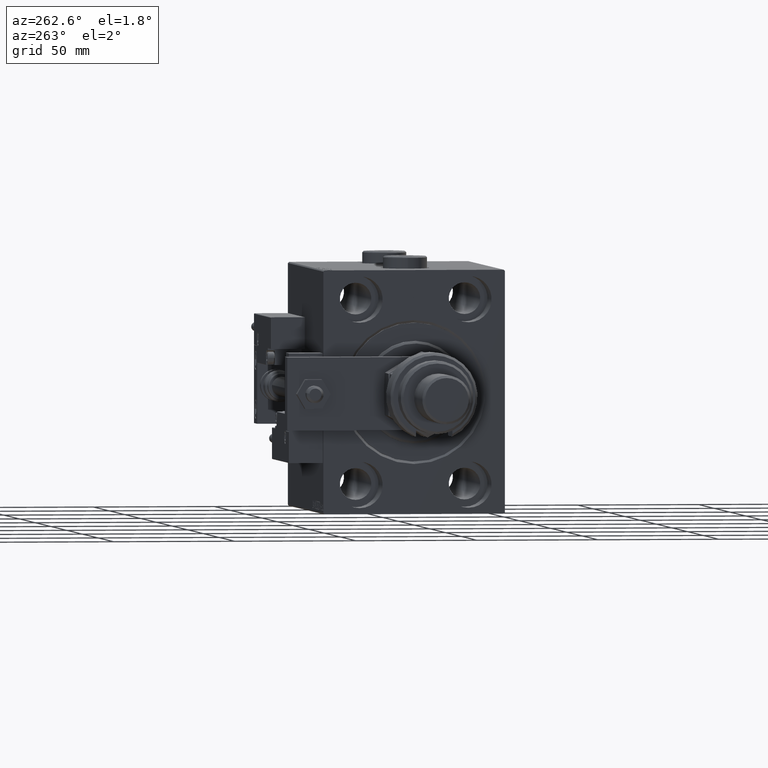
[diagram: clean part render]
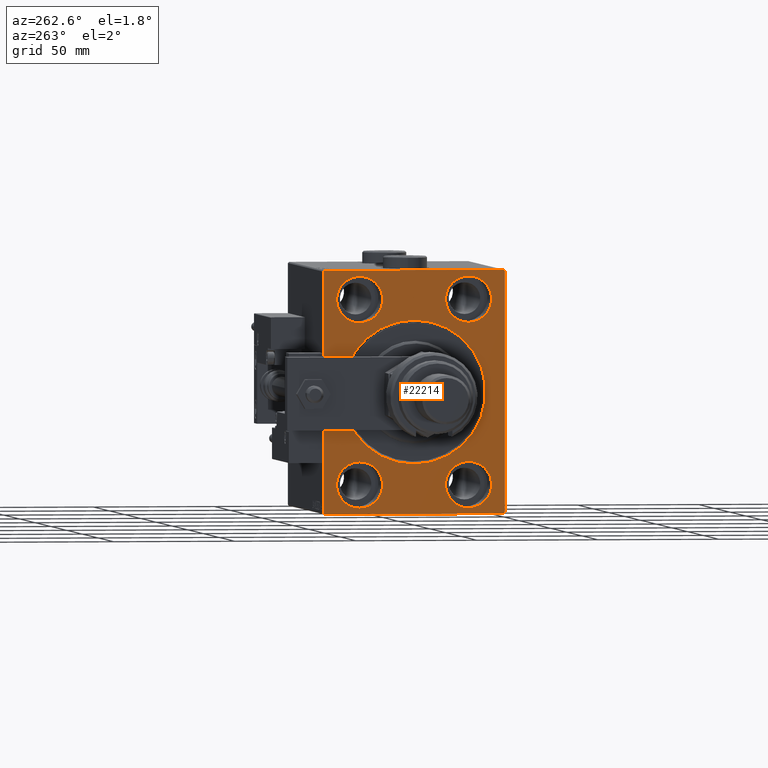
[diagram: same view with one face highlighted and labeled with its STEP entity id]
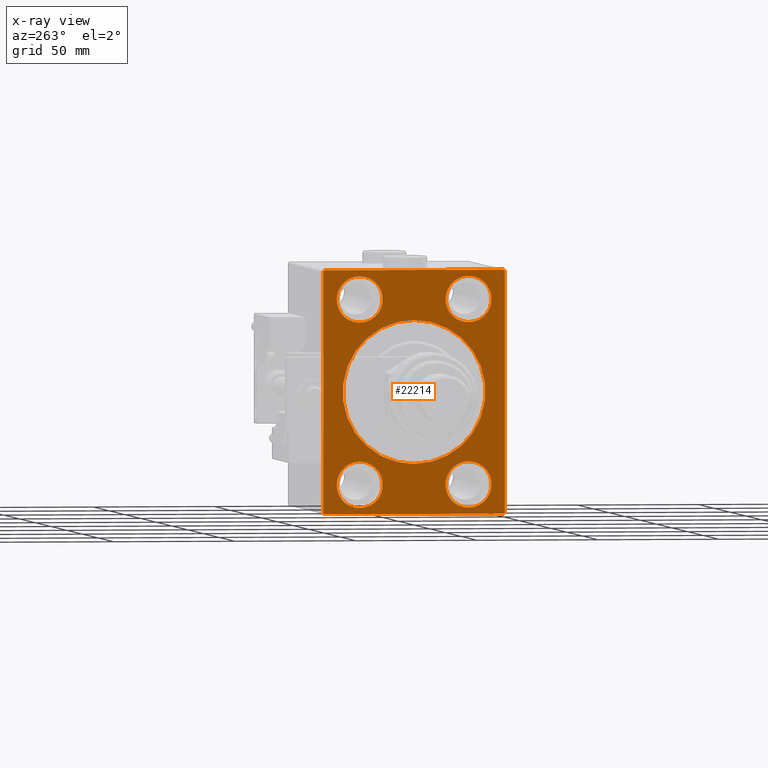
[diagram: x-ray of the same camera — body ghosted, the highlighted face saturated]
A machine part, auxiliary view. The second image highlights one B-rep face of the part: STEP entity #22214.
The next image is the same camera in x-ray: the body ghosted, the highlighted face saturated — about 0% of this face is hidden behind the body in this view.
In plain terms, the highlighted planar face has unit normal (1, 0, 0).
Its self-contained STEP definition (entity closure, byte-faithful):
#101 = CARTESIAN_POINT ( 'NONE',  ( 0.000000000000000000, 22.50000000000000355, 28.49999999999998934 ) ) ;
#556 = EDGE_CURVE ( 'NONE', #15385, #4356, #54219, .T. ) ;
#671 = ORIENTED_EDGE ( 'NONE', *, *, #10466, .T. ) ;
#1246 = EDGE_LOOP ( 'NONE', ( #18097, #41942 ) ) ;
#1442 = AXIS2_PLACEMENT_3D ( 'NONE', #1806, #17781, #34602 ) ;
#1806 = CARTESIAN_POINT ( 'NONE',  ( 0.000000000000000000, -22.49999999999999645, 37.99999999999999289 ) ) ;
#2810 = VERTEX_POINT ( 'NONE', #101 ) ;
#3592 = DIRECTION ( 'NONE',  ( -1.000000000000000000, 0.000000000000000000, 0.000000000000000000 ) ) ;
#3809 = VECTOR ( 'NONE', #54017, 1000.000000000000000 ) ;
#4356 = VERTEX_POINT ( 'NONE', #41732 ) ;
#4665 = CARTESIAN_POINT ( 'NONE',  ( 0.000000000000000000, 37.00000000000000711, -50.00000000000000000 ) ) ;
#4901 = DIRECTION ( 'NONE',  ( -1.000000000000000000, 0.000000000000000000, 0.000000000000000000 ) ) ;
#5135 = CARTESIAN_POINT ( 'NONE',  ( 0.000000000000000000, 37.50000000000000711, -49.50000000000000000 ) ) ;
#5189 = ORIENTED_EDGE ( 'NONE', *, *, #30219, .T. ) ;
#5282 = CARTESIAN_POINT ( 'NONE',  ( 0.000000000000000000, 22.50000000000000355, 47.49999999999999289 ) ) ;
#5301 = DIRECTION ( 'NONE',  ( 0.000000000000000000, 0.000000000000000000, 1.000000000000000000 ) ) ;
#6318 = CARTESIAN_POINT ( 'NONE',  ( 0.000000000000000000, 22.49999999999999645, -28.49999999999998934 ) ) ;
#6780 = EDGE_CURVE ( 'NONE', #4356, #15385, #13109, .T. ) ;
#6819 = DIRECTION ( 'NONE',  ( -0.000000000000000000, -0.7071067811865474617, 0.7071067811865474617 ) ) ;
#6968 = DIRECTION ( 'NONE',  ( -1.000000000000000000, 0.000000000000000000, 0.000000000000000000 ) ) ;
#7377 = VECTOR ( 'NONE', #19593, 1000.000000000000000 ) ;
#7395 = CARTESIAN_POINT ( 'NONE',  ( 0.000000000000000000, 22.49999999999999645, -47.49999999999999289 ) ) ;
#7551 = DIRECTION ( 'NONE',  ( -1.000000000000000000, 0.000000000000000000, 0.000000000000000000 ) ) ;
#7645 = DIRECTION ( 'NONE',  ( 0.000000000000000000, 1.000000000000000000, 9.251858538542970348E-17 ) ) ;
#8192 = EDGE_LOOP ( 'NONE', ( #9602, #44396 ) ) ;
#8298 = FACE_BOUND ( 'NONE', #41068, .T. ) ;
#8562 = FACE_BOUND ( 'NONE', #1246, .T. ) ;
#8665 = DIRECTION ( 'NONE',  ( 0.000000000000000000, -0.7071067811865474617, -0.7071067811865474617 ) ) ;
#9027 = EDGE_CURVE ( 'NONE', #11869, #2810, #25601, .T. ) ;
#9110 = CARTESIAN_POINT ( 'NONE',  ( 0.000000000000000000, 37.49999999999999289, 49.50000000000000000 ) ) ;
#9445 = VERTEX_POINT ( 'NONE', #40370 ) ;
#9602 = ORIENTED_EDGE ( 'NONE', *, *, #21004, .F. ) ;
#9685 = CARTESIAN_POINT ( 'NONE',  ( 0.000000000000000000, 22.49999999999999645, -37.99999999999999289 ) ) ;
#9725 = VERTEX_POINT ( 'NONE', #35303 ) ;
#10466 = EDGE_CURVE ( 'NONE', #45730, #15785, #46663, .T. ) ;
#10555 = CARTESIAN_POINT ( 'NONE',  ( 0.000000000000000000, -22.49999999999999645, 37.99999999999999289 ) ) ;
#11454 = ORIENTED_EDGE ( 'NONE', *, *, #14823, .T. ) ;
#11786 = LINE ( 'NONE', #20563, #37295 ) ;
#11869 = VERTEX_POINT ( 'NONE', #5282 ) ;
#11988 = CARTESIAN_POINT ( 'NONE',  ( 0.000000000000000000, 0.000000000000000000, 0.000000000000000000 ) ) ;
#12135 = VERTEX_POINT ( 'NONE', #46264 ) ;
#12743 = CIRCLE ( 'NONE', #39134, 9.500000000000001776 ) ;
#13109 = CIRCLE ( 'NONE', #43911, 9.500000000000001776 ) ;
#13702 = ORIENTED_EDGE ( 'NONE', *, *, #45956, .F. ) ;
#13778 = DIRECTION ( 'NONE',  ( 0.000000000000000000, -1.387778780781445676E-16, 1.000000000000000000 ) ) ;
#14062 = CARTESIAN_POINT ( 'NONE',  ( 0.000000000000000000, 37.50000000000000711, -50.00000000000000000 ) ) ;
#14256 = VERTEX_POINT ( 'NONE', #7395 ) ;
#14631 = CARTESIAN_POINT ( 'NONE',  ( 0.000000000000000000, 37.49999999999999289, 50.00000000000000711 ) ) ;
#14702 = VERTEX_POINT ( 'NONE', #19313 ) ;
#14803 = EDGE_CURVE ( 'NONE', #36157, #14256, #20523, .T. ) ;
#14823 = EDGE_CURVE ( 'NONE', #24231, #27999, #20124, .T. ) ;
#15385 = VERTEX_POINT ( 'NONE', #30499 ) ;
#15554 = ORIENTED_EDGE ( 'NONE', *, *, #14803, .F. ) ;
#15618 = AXIS2_PLACEMENT_3D ( 'NONE', #11988, #41197, #45588 ) ;
#15696 = EDGE_CURVE ( 'NONE', #48704, #14702, #23735, .T. ) ;
#15785 = VERTEX_POINT ( 'NONE', #4665 ) ;
#16378 = DIRECTION ( 'NONE',  ( 0.000000000000000000, 0.000000000000000000, -1.000000000000000000 ) ) ;
#16711 = CARTESIAN_POINT ( 'NONE',  ( 0.000000000000000000, -37.50000000000000711, 49.49999999999999289 ) ) ;
#17781 = DIRECTION ( 'NONE',  ( -1.000000000000000000, 0.000000000000000000, 0.000000000000000000 ) ) ;
#17871 = EDGE_CURVE ( 'NONE', #48704, #40235, #54508, .T. ) ;
#18097 = ORIENTED_EDGE ( 'NONE', *, *, #556, .F. ) ;
#18098 = ORIENTED_EDGE ( 'NONE', *, *, #15696, .F. ) ;
#18618 = VECTOR ( 'NONE', #8665, 1000.000000000000114 ) ;
#19313 = CARTESIAN_POINT ( 'NONE',  ( 0.000000000000000000, -37.50000000000000711, -49.50000000000000711 ) ) ;
#19593 = DIRECTION ( 'NONE',  ( 0.000000000000000000, 0.000000000000000000, -1.000000000000000000 ) ) ;
#20124 = LINE ( 'NONE', #53754, #3809 ) ;
#20414 = FACE_OUTER_BOUND ( 'NONE', #50383, .T. ) ;
#20519 = VECTOR ( 'NONE', #36885, 1000.000000000000114 ) ;
#20523 = CIRCLE ( 'NONE', #51325, 9.500000000000001776 ) ;
#20563 = CARTESIAN_POINT ( 'NONE',  ( 0.000000000000000000, -37.50000000000000711, -50.00000000000000711 ) ) ;
#20674 = PLANE ( 'NONE',  #25989 ) ;
#21004 = EDGE_CURVE ( 'NONE', #38757, #51519, #38258, .T. ) ;
#21018 = ORIENTED_EDGE ( 'NONE', *, *, #51839, .F. ) ;
#21154 = EDGE_LOOP ( 'NONE', ( #52164, #13702 ) ) ;
#21213 = FACE_BOUND ( 'NONE', #29326, .T. ) ;
#21289 = ORIENTED_EDGE ( 'NONE', *, *, #45530, .F. ) ;
#21745 = EDGE_CURVE ( 'NONE', #51519, #38757, #12743, .T. ) ;
#22100 = AXIS2_PLACEMENT_3D ( 'NONE', #9685, #34188, #43271 ) ;
#22214 = ADVANCED_FACE ( 'NONE', ( #21213, #8298, #8562, #24826, #41890, #20414 ), #20674, .F. ) ;
#23735 = LINE ( 'NONE', #37471, #7377 ) ;
#24189 = AXIS2_PLACEMENT_3D ( 'NONE', #34240, #30363, #5301 ) ;
#24231 = VERTEX_POINT ( 'NONE', #26415 ) ;
#24284 = DIRECTION ( 'NONE',  ( -1.000000000000000000, 0.000000000000000000, 0.000000000000000000 ) ) ;
#24485 = ORIENTED_EDGE ( 'NONE', *, *, #17871, .T. ) ;
#24689 = VECTOR ( 'NONE', #13778, 1000.000000000000000 ) ;
#24826 = FACE_BOUND ( 'NONE', #21154, .T. ) ;
#25601 = CIRCLE ( 'NONE', #34386, 9.500000000000001776 ) ;
#25989 = AXIS2_PLACEMENT_3D ( 'NONE', #33628, #45487, #49889 ) ;
#26415 = CARTESIAN_POINT ( 'NONE',  ( 0.000000000000000000, 36.99999999999997868, 50.00000000000000711 ) ) ;
#27946 = CARTESIAN_POINT ( 'NONE',  ( 0.000000000000000000, -22.50000000000000711, -37.99999999999999289 ) ) ;
#27999 = VERTEX_POINT ( 'NONE', #9110 ) ;
#29326 = EDGE_LOOP ( 'NONE', ( #46182, #5189 ) ) ;
#30219 = EDGE_CURVE ( 'NONE', #9725, #12135, #37587, .T. ) ;
#30363 = DIRECTION ( 'NONE',  ( -1.000000000000000000, 0.000000000000000000, 0.000000000000000000 ) ) ;
#30499 = CARTESIAN_POINT ( 'NONE',  ( 0.000000000000000000, -22.49999999999999645, 47.49999999999999289 ) ) ;
#31608 = LINE ( 'NONE', #43744, #33878 ) ;
#33455 = CARTESIAN_POINT ( 'NONE',  ( 0.000000000000000000, 37.50000000000000711, -49.50000000000000000 ) ) ;
#33628 = CARTESIAN_POINT ( 'NONE',  ( 0.000000000000000000, 0.000000000000000000, 0.000000000000000000 ) ) ;
#33721 = DIRECTION ( 'NONE',  ( 1.000000000000000000, 0.000000000000000000, 0.000000000000000000 ) ) ;
#33845 = DIRECTION ( 'NONE',  ( 0.000000000000000000, 0.000000000000000000, 1.000000000000000000 ) ) ;
#33878 = VECTOR ( 'NONE', #6819, 1000.000000000000114 ) ;
#34188 = DIRECTION ( 'NONE',  ( -1.000000000000000000, 0.000000000000000000, 0.000000000000000000 ) ) ;
#34240 = CARTESIAN_POINT ( 'NONE',  ( 0.000000000000000000, -22.50000000000000711, -37.99999999999999289 ) ) ;
#34386 = AXIS2_PLACEMENT_3D ( 'NONE', #54251, #4901, #33845 ) ;
#34602 = DIRECTION ( 'NONE',  ( 0.000000000000000000, 0.000000000000000000, 1.000000000000000000 ) ) ;
#35303 = CARTESIAN_POINT ( 'NONE',  ( 0.000000000000000000, 3.612708057484693970E-15, -29.50000000000001421 ) ) ;
#36140 = AXIS2_PLACEMENT_3D ( 'NONE', #41098, #24284, #40834 ) ;
#36157 = VERTEX_POINT ( 'NONE', #6318 ) ;
#36885 = DIRECTION ( 'NONE',  ( -0.000000000000000000, 0.7071067811865474617, 0.7071067811865474617 ) ) ;
#37295 = VECTOR ( 'NONE', #7645, 1000.000000000000000 ) ;
#37471 = CARTESIAN_POINT ( 'NONE',  ( 0.000000000000000000, -37.50000000000000711, 49.99999999999999289 ) ) ;
#37587 = CIRCLE ( 'NONE', #15618, 29.50000000000001421 ) ;
#38258 = CIRCLE ( 'NONE', #24189, 9.500000000000001776 ) ;
#38757 = VERTEX_POINT ( 'NONE', #41590 ) ;
#38770 = CIRCLE ( 'NONE', #36140, 9.500000000000001776 ) ;
#38847 = LINE ( 'NONE', #14062, #24689 ) ;
#38910 = CARTESIAN_POINT ( 'NONE',  ( 0.000000000000000000, -22.50000000000000711, -47.49999999999999289 ) ) ;
#39134 = AXIS2_PLACEMENT_3D ( 'NONE', #27946, #7551, #53574 ) ;
#40235 = VERTEX_POINT ( 'NONE', #54405 ) ;
#40370 = CARTESIAN_POINT ( 'NONE',  ( 0.000000000000000000, -37.00000000000000711, -50.00000000000000711 ) ) ;
#40540 = CARTESIAN_POINT ( 'NONE',  ( 0.000000000000000000, 22.49999999999999645, -37.99999999999999289 ) ) ;
#40834 = DIRECTION ( 'NONE',  ( 0.000000000000000000, 0.000000000000000000, 1.000000000000000000 ) ) ;
#41068 = EDGE_LOOP ( 'NONE', ( #15554, #41626 ) ) ;
#41076 = DIRECTION ( 'NONE',  ( 0.000000000000000000, 0.000000000000000000, 1.000000000000000000 ) ) ;
#41098 = CARTESIAN_POINT ( 'NONE',  ( 0.000000000000000000, 22.50000000000000355, 37.99999999999999289 ) ) ;
#41197 = DIRECTION ( 'NONE',  ( 1.000000000000000000, 0.000000000000000000, 0.000000000000000000 ) ) ;
#41590 = CARTESIAN_POINT ( 'NONE',  ( 0.000000000000000000, -22.50000000000000711, -28.49999999999998934 ) ) ;
#41626 = ORIENTED_EDGE ( 'NONE', *, *, #46958, .F. ) ;
#41732 = CARTESIAN_POINT ( 'NONE',  ( 0.000000000000000000, -22.49999999999999645, 28.49999999999998934 ) ) ;
#41890 = FACE_BOUND ( 'NONE', #8192, .T. ) ;
#41942 = ORIENTED_EDGE ( 'NONE', *, *, #6780, .F. ) ;
#43271 = DIRECTION ( 'NONE',  ( 0.000000000000000000, 0.000000000000000000, 1.000000000000000000 ) ) ;
#43744 = CARTESIAN_POINT ( 'NONE',  ( 0.000000000000000000, -37.00000000000000711, -50.00000000000000711 ) ) ;
#43884 = DIRECTION ( 'NONE',  ( 0.000000000000000000, 0.000000000000000000, 1.000000000000000000 ) ) ;
#43911 = AXIS2_PLACEMENT_3D ( 'NONE', #10555, #6968, #43884 ) ;
#44102 = LINE ( 'NONE', #14631, #46032 ) ;
#44231 = CIRCLE ( 'NONE', #48640, 29.50000000000001421 ) ;
#44396 = ORIENTED_EDGE ( 'NONE', *, *, #21745, .F. ) ;
#45061 = ORIENTED_EDGE ( 'NONE', *, *, #49829, .F. ) ;
#45487 = DIRECTION ( 'NONE',  ( 1.000000000000000000, 0.000000000000000000, 0.000000000000000000 ) ) ;
#45530 = EDGE_CURVE ( 'NONE', #45730, #27999, #38847, .T. ) ;
#45588 = DIRECTION ( 'NONE',  ( 0.000000000000000000, 0.000000000000000000, -1.000000000000000000 ) ) ;
#45730 = VERTEX_POINT ( 'NONE', #5135 ) ;
#45838 = CIRCLE ( 'NONE', #22100, 9.500000000000001776 ) ;
#45956 = EDGE_CURVE ( 'NONE', #2810, #11869, #38770, .T. ) ;
#46032 = VECTOR ( 'NONE', #52930, 1000.000000000000000 ) ;
#46182 = ORIENTED_EDGE ( 'NONE', *, *, #49263, .T. ) ;
#46264 = CARTESIAN_POINT ( 'NONE',  ( 0.000000000000000000, 0.000000000000000000, 29.50000000000001421 ) ) ;
#46663 = LINE ( 'NONE', #33455, #18618 ) ;
#46958 = EDGE_CURVE ( 'NONE', #14256, #36157, #45838, .T. ) ;
#48640 = AXIS2_PLACEMENT_3D ( 'NONE', #54136, #33721, #16378 ) ;
#48704 = VERTEX_POINT ( 'NONE', #16711 ) ;
#49263 = EDGE_CURVE ( 'NONE', #12135, #9725, #44231, .T. ) ;
#49829 = EDGE_CURVE ( 'NONE', #24231, #40235, #44102, .T. ) ;
#49889 = DIRECTION ( 'NONE',  ( 0.000000000000000000, 0.000000000000000000, -1.000000000000000000 ) ) ;
#50383 = EDGE_LOOP ( 'NONE', ( #18098, #24485, #45061, #11454, #21289, #671, #21018, #52804 ) ) ;
#51325 = AXIS2_PLACEMENT_3D ( 'NONE', #40540, #3592, #41076 ) ;
#51519 = VERTEX_POINT ( 'NONE', #38910 ) ;
#51839 = EDGE_CURVE ( 'NONE', #9445, #15785, #11786, .T. ) ;
#52164 = ORIENTED_EDGE ( 'NONE', *, *, #9027, .F. ) ;
#52804 = ORIENTED_EDGE ( 'NONE', *, *, #54444, .T. ) ;
#52930 = DIRECTION ( 'NONE',  ( 0.000000000000000000, -1.000000000000000000, -1.850371707708594316E-16 ) ) ;
#53431 = CARTESIAN_POINT ( 'NONE',  ( 0.000000000000000000, -37.50000000000000711, 49.49999999999999289 ) ) ;
#53574 = DIRECTION ( 'NONE',  ( 0.000000000000000000, 0.000000000000000000, 1.000000000000000000 ) ) ;
#53754 = CARTESIAN_POINT ( 'NONE',  ( 0.000000000000000000, 36.99999999999997868, 50.00000000000000711 ) ) ;
#54017 = DIRECTION ( 'NONE',  ( -0.000000000000000000, 0.7071067811865524577, -0.7071067811865426878 ) ) ;
#54136 = CARTESIAN_POINT ( 'NONE',  ( 0.000000000000000000, 0.000000000000000000, 0.000000000000000000 ) ) ;
#54219 = CIRCLE ( 'NONE', #1442, 9.500000000000001776 ) ;
#54251 = CARTESIAN_POINT ( 'NONE',  ( 0.000000000000000000, 22.50000000000000355, 37.99999999999999289 ) ) ;
#54405 = CARTESIAN_POINT ( 'NONE',  ( 0.000000000000000000, -37.00000000000000711, 49.99999999999999289 ) ) ;
#54444 = EDGE_CURVE ( 'NONE', #9445, #14702, #31608, .T. ) ;
#54508 = LINE ( 'NONE', #53431, #20519 ) ;